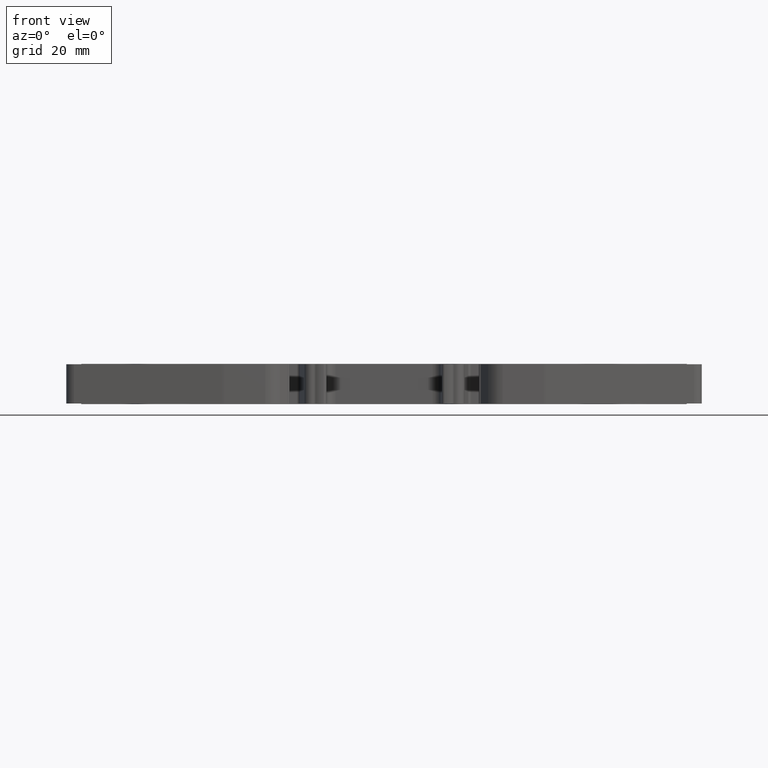
[diagram: clean part render]
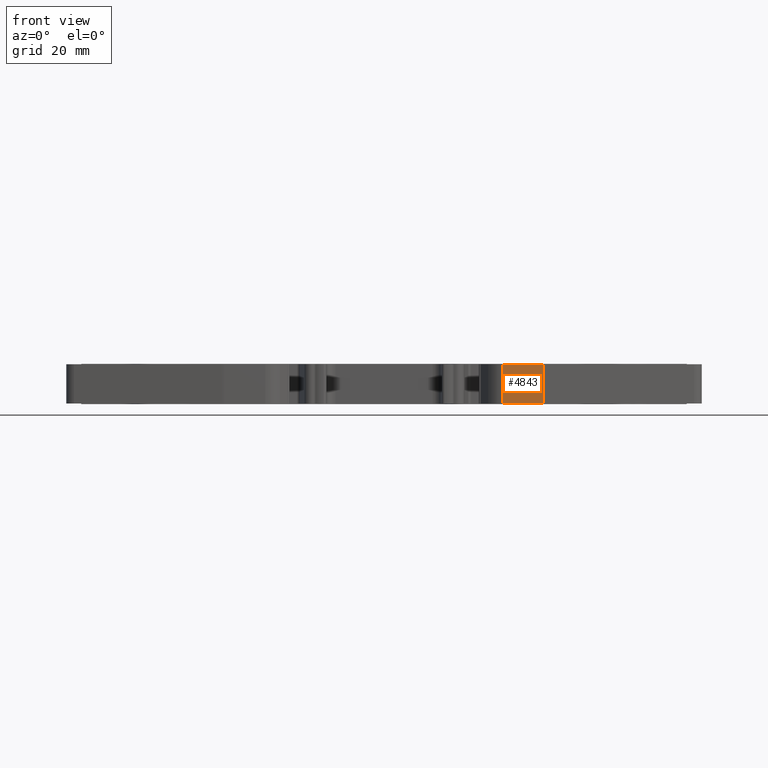
[diagram: same view with one face highlighted and labeled with its STEP entity id]
A machine part, front view. The second image highlights one B-rep face of the part: STEP entity #4843.
In plain terms, the highlighted planar face has unit normal (0, 1, 0).
Its self-contained STEP definition (entity closure, byte-faithful):
#824 = CARTESIAN_POINT ( 'NONE',  ( 278.4358060524715500, 5.453653395024820000, -0.3500000000000000300 ) ) ;
#858 = CARTESIAN_POINT ( 'NONE',  ( 285.1492105633285000, 5.453653395024789900, -0.3499999999999996400 ) ) ;
#1042 = VERTEX_POINT ( 'NONE', #824 ) ;
#1059 = VERTEX_POINT ( 'NONE', #858 ) ;
#3455 = LINE ( 'NONE', #3468, #22314 ) ;
#3468 = CARTESIAN_POINT ( 'NONE',  ( 278.4358060524715500, 5.453653395024811200, -0.3500000000000000300 ) ) ;
#3495 = DIRECTION ( 'NONE',  ( -1.000000000000000000, 0.0000000000000000000, 0.0000000000000000000 ) ) ;
#4843 = ADVANCED_FACE ( 'NONE', ( #8863 ), #8888, .F. ) ;
#5098 = EDGE_CURVE ( 'NONE', #1059, #1042, #3455, .T. ) ;
#5995 = EDGE_CURVE ( 'NONE', #1059, #7615, #15855, .T. ) ;
#5998 = EDGE_CURVE ( 'NONE', #7621, #1042, #15822, .T. ) ;
#6230 = EDGE_CURVE ( 'NONE', #7621, #7615, #14851, .T. ) ;
#7615 = VERTEX_POINT ( 'NONE', #13898 ) ;
#7621 = VERTEX_POINT ( 'NONE', #13926 ) ;
#7661 = ORIENTED_EDGE ( 'NONE', *, *, #5995, .T. ) ;
#7671 = ORIENTED_EDGE ( 'NONE', *, *, #5998, .T. ) ;
#7672 = ORIENTED_EDGE ( 'NONE', *, *, #5098, .F. ) ;
#7691 = ORIENTED_EDGE ( 'NONE', *, *, #6230, .F. ) ;
#8863 = FACE_OUTER_BOUND ( 'NONE', #21404, .T. ) ;
#8873 = DIRECTION ( 'NONE',  ( 0.0000000000000000000, 1.000000000000000000, 0.0000000000000000000 ) ) ;
#8874 = CARTESIAN_POINT ( 'NONE',  ( 278.4358060524715500, 5.453653395024811200, 2.899999999999999900 ) ) ;
#8878 = DIRECTION ( 'NONE',  ( 0.0000000000000000000, 0.0000000000000000000, 1.000000000000000000 ) ) ;
#8888 = PLANE ( 'NONE',  #22733 ) ;
#13496 = VECTOR ( 'NONE', #15856, 1000.000000000000000 ) ;
#13513 = VECTOR ( 'NONE', #15816, 1000.000000000000000 ) ;
#13898 = CARTESIAN_POINT ( 'NONE',  ( 285.1492105633285000, 5.453653395024789900, 6.200000000000001100 ) ) ;
#13926 = CARTESIAN_POINT ( 'NONE',  ( 278.4358060524715500, 5.453653395024820000, 6.200000000000000200 ) ) ;
#14813 = CARTESIAN_POINT ( 'NONE',  ( 278.4358060524715500, 5.453653395024811200, 6.200000000000000200 ) ) ;
#14821 = DIRECTION ( 'NONE',  ( 1.000000000000000000, 0.0000000000000000000, 0.0000000000000000000 ) ) ;
#14851 = LINE ( 'NONE', #14813, #17232 ) ;
#15816 = DIRECTION ( 'NONE',  ( 0.0000000000000000000, 0.0000000000000000000, -1.000000000000000000 ) ) ;
#15822 = LINE ( 'NONE', #15841, #13513 ) ;
#15839 = CARTESIAN_POINT ( 'NONE',  ( 285.1492105633285000, 5.453653395024789900, -29.27624599594290100 ) ) ;
#15841 = CARTESIAN_POINT ( 'NONE',  ( 278.4358060524715500, 5.453653395024820000, 2.899999999999999900 ) ) ;
#15855 = LINE ( 'NONE', #15839, #13496 ) ;
#15856 = DIRECTION ( 'NONE',  ( 0.0000000000000000000, 0.0000000000000000000, 1.000000000000000000 ) ) ;
#17232 = VECTOR ( 'NONE', #14821, 1000.000000000000000 ) ;
#21404 = EDGE_LOOP ( 'NONE', ( #7672, #7661, #7691, #7671 ) ) ;
#22314 = VECTOR ( 'NONE', #3495, 1000.000000000000000 ) ;
#22733 = AXIS2_PLACEMENT_3D ( 'NONE', #8874, #8873, #8878 ) ;